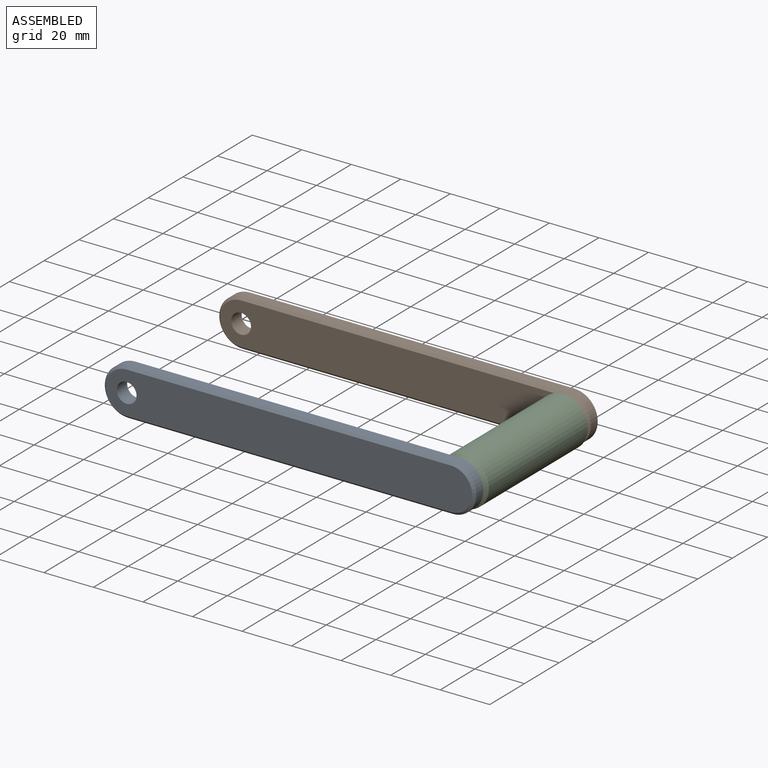
[diagram: assembled view]
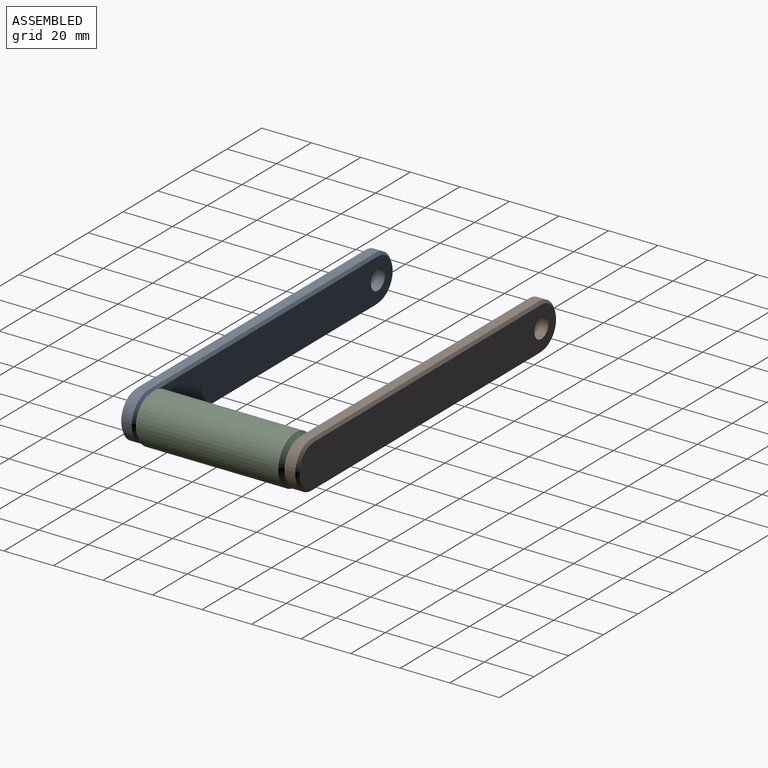
[diagram: assembled view, second angle]
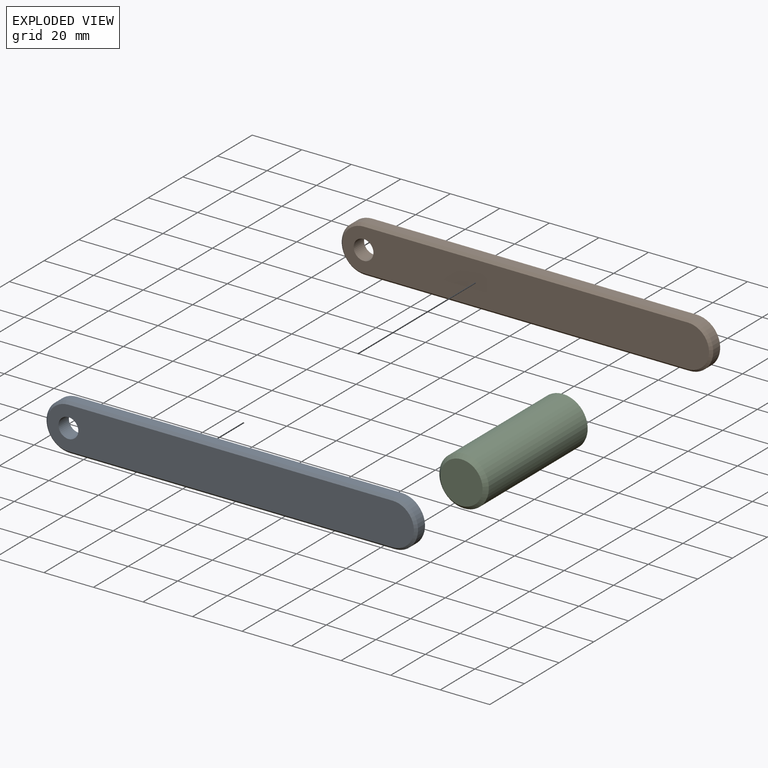
[diagram: exploded view]
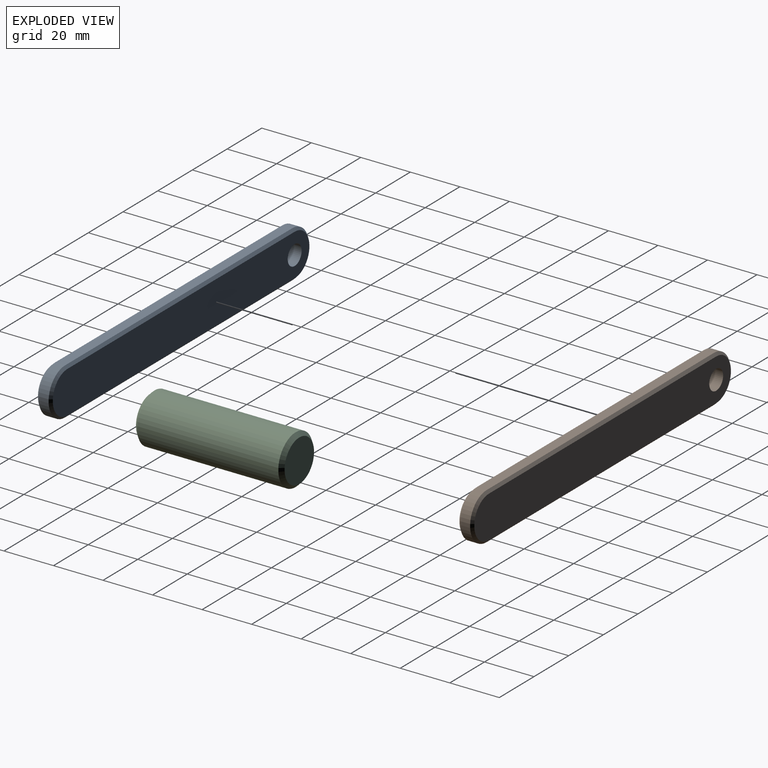
[diagram: exploded view, second angle]
ASSEMBLY  parts=3 mates=2
PART A: 15 faces, bbox 150x6x19 mm
  f0: cylinder r=9.5mm len=19mm, axis (0,1,0), area 119.4mm2, adj f1,f4,f9,f13
  f1: plane 131x4mm, normal (0,0,1), area 524mm2, adj f0,f2,f10,f14
  f2: cylinder r=9.5mm len=19mm, axis (0,1,0), area 119.4mm2, adj f1,f4,f8,f12
  f3: cylinder r=4mm len=8mm, axis (0,1,0), area 150.8mm2, adj f5,f6
  f4: plane 131x4mm, normal (0,0,-1), area 524mm2, adj f0,f2,f7,f11
  f5: plane 148x17mm, normal (0,-1,0), area 2403.7mm2, adj f3,f11,f12,f13,f14
  f6: plane 148x17mm, normal (0,1,0), area 2403.7mm2, adj f3,f7,f8,f9,f10
  f7: plane 131x1mm, normal (0,0.71,-0.71), area 185.3mm2, adj f4,f6,f8,f9
  f8: cone r=9.5mm half-angle=45deg, axis (0,-1,0), area 40mm2, adj f2,f6,f7,f10
  f9: cone r=8.5mm half-angle=45deg, axis (0,-1,0), area 40mm2, adj f0,f6,f7,f10
  f10: plane 131x1mm, normal (0,0.71,0.71), area 185.3mm2, adj f1,f6,f8,f9
  f11: plane 131x1mm, normal (0,-0.71,-0.71), area 185.3mm2, adj f4,f5,f12,f13
  f12: cone r=8.5mm half-angle=45deg, axis (0,1,0), area 40mm2, adj f2,f5,f11,f14
  f13: cone r=9.5mm half-angle=45deg, axis (0,1,0), area 40mm2, adj f0,f5,f11,f14
  f14: plane 131x1mm, normal (0,-0.71,0.71), area 185.3mm2, adj f1,f5,f12,f13
PART B: same geometry as A
PART C: 5 faces, bbox 20x60x20 mm
  f0: cylinder r=10mm len=57mm, axis (0,1,0), area 3581.4mm2, adj f3,f4
  f1: plane 17x17mm, normal (0,-1,0), area 227mm2, adj f4
  f2: plane 17x17mm, normal (0,1,0), area 227mm2, adj f3
  f3: cone r=10mm half-angle=45deg, axis (0,-1,0), area 123.3mm2, adj f0,f2
  f4: cone r=8.5mm half-angle=45deg, axis (0,1,0), area 123.3mm2, adj f0,f1
PLACE A rot(axis=(1,0,0),180deg) t=(-77.38,-51.07,-14.57)mm
PLACE B t=(-77.38,20.93,-14.57)mm
PLACE C t=(-11.88,14.93,-14.57)mm
MATE fastened C.f0 <-> B.f0  axis (0,1,0) through (-11.88,14.93,-14.57)mm
MATE fastened A.f0 <-> C.f0  axis (0,1,0) through (-11.88,-45.07,-14.57)mm
